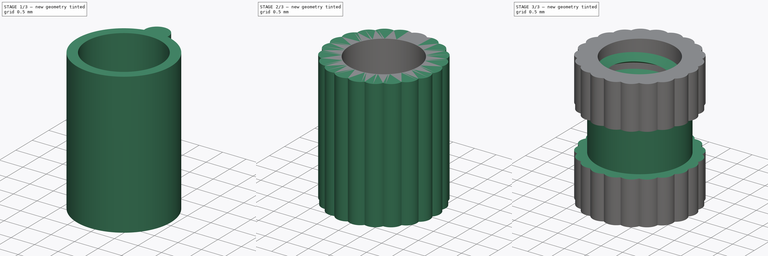
[diagram: build sequence overview — one tinted view per stage of 3, left to right]
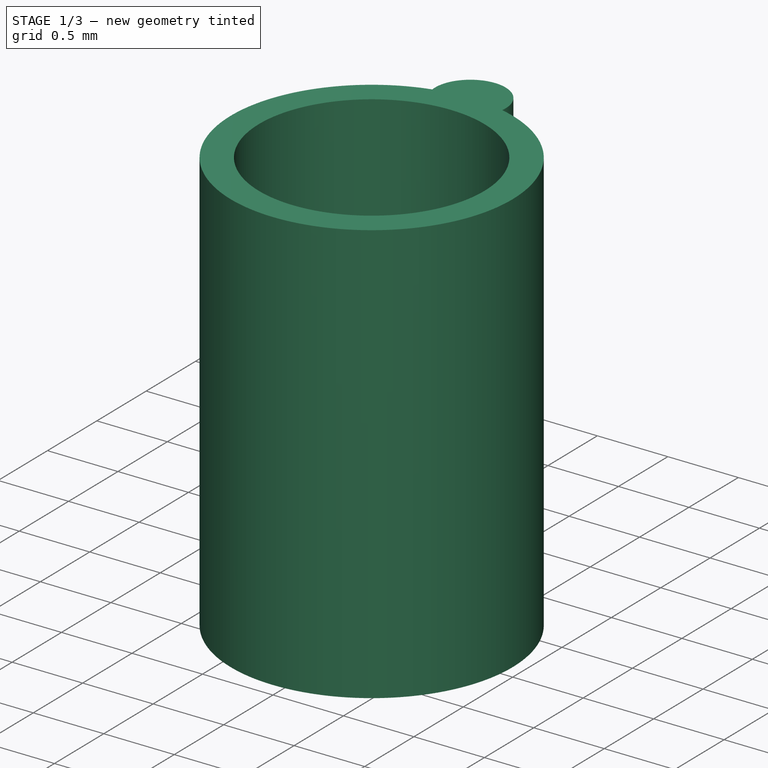
[diagram: stage 1 of 3 — iso view after this stage's code; geometry added in this stage tinted green]
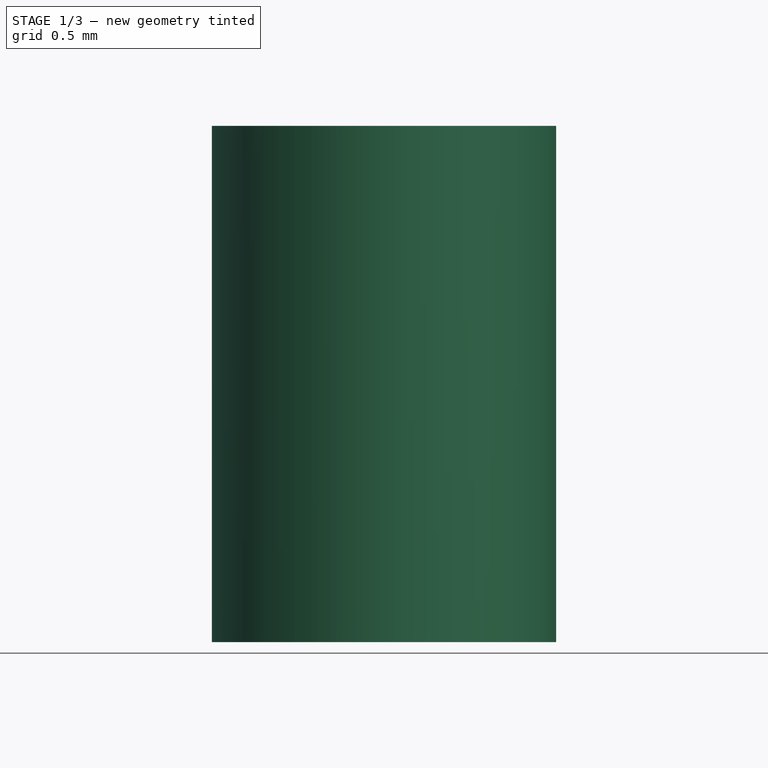
[diagram: stage 1 of 3 — front view after this stage's code; geometry added in this stage tinted green]
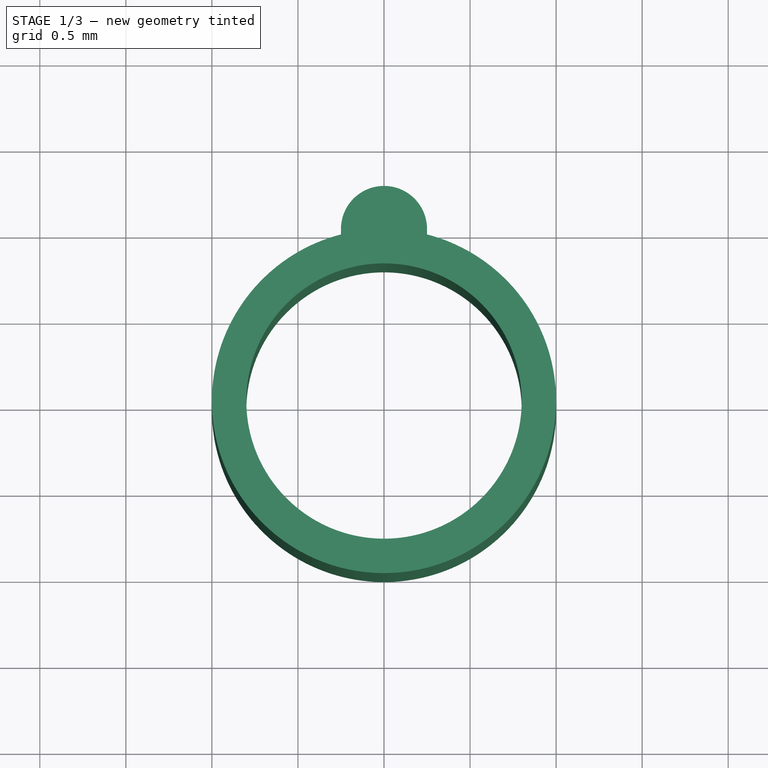
[diagram: stage 1 of 3 — top view after this stage's code; geometry added in this stage tinted green]
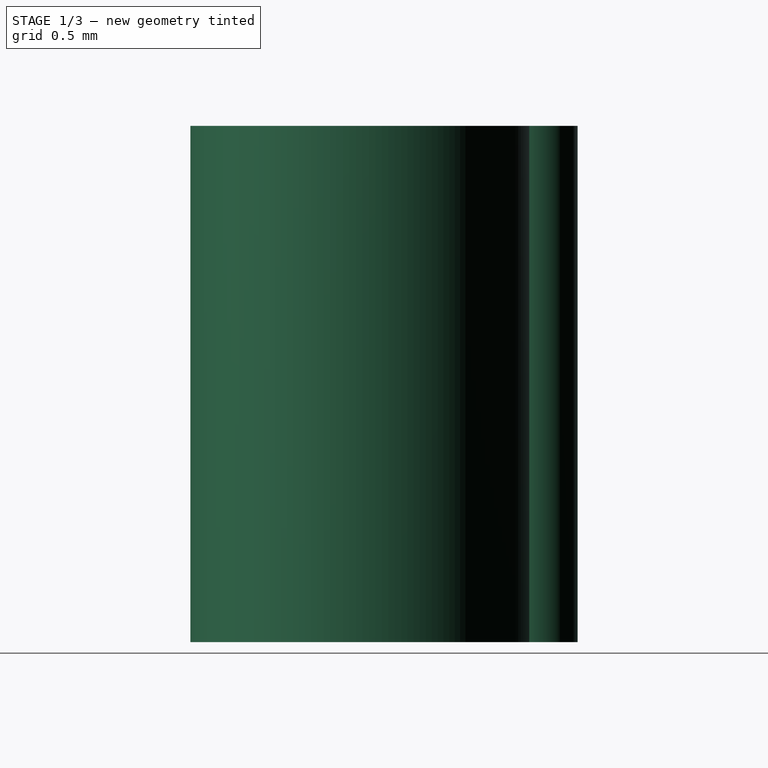
[diagram: stage 1 of 3 — right view after this stage's code; geometry added in this stage tinted green]
FCSTD DOCUMENT  (FreeCAD 1.0R39319 (Git))
Label: INSERT-M1.6x2.5x3
License: All rights reserved
LicenseURL: https://en.wikipedia.org/wiki/All_rights_reserved
objects: Sketcher::SketchObject×4, PartDesign::Pad×2, PartDesign::Plane×2, PartDesign::PolarPattern×1, PartDesign::Groove×1, PartDesign::AdditiveHelix×1, PartDesign::Line×1, PartDesign::Body×1
note: 26 computed .brp shape members not serialized (recipe doc carries the construction recipe); baked Part::Feature solids carry a one-line shape summary decoded from their .brp

FEATURE [Sketcher::SketchObject] Sketch
  ArcFitTolerance = 0
  AttachmentSupport = -> [XY_Plane]
  FullyConstrained = true
  MakeInternals = false
  MapMode = 5
  sketch-geometry (2):
    g0: Circle CenterX=0 CenterY=0 CenterZ=0 NormalX=0 NormalY=0 NormalZ=1 AngleXU=0 Radius=0.8
    g1: Circle CenterX=0 CenterY=0 CenterZ=0 NormalX=0 NormalY=0 NormalZ=1 AngleXU=0 Radius=1
  constraints (4):
    c: Coincident(g0,g-1)
    c: Coincident(g1,g0)
    c: Diameter(g0) = 1.6
    c: Diameter(g1) = 2
FEATURE [PartDesign::Pad] Pad
  Direction = (0,0,1)
  Length = 3
  Length2 = 10
  Midplane = true
  Profile = -> Sketch
  ReferenceAxis = -> Sketch [N_Axis]
  Suppressed = false
  Type = 0
FEATURE [Sketcher::SketchObject] Sketch001
  ArcFitTolerance = 0
  AttachmentSupport = -> [XZ_Plane]
  FullyConstrained = true
  MakeInternals = false
  MapMode = 5
  Placement = pos=(0,0,0) rot=(1,0,0;1.5708rad)
  sketch-geometry (5):
    g0: LineSegment StartX=-0.8 StartY=-1.4 StartZ=0 EndX=-0.6105 EndY=-1.29059 EndZ=0
    g1: LineSegment StartX=-0.6105 StartY=-1.29059 StartZ=0 EndX=-0.8 EndY=-1.18118 EndZ=0
    g2: LineSegment StartX=-0.8 StartY=-1.4 StartZ=0 EndX=-0.9 EndY=-1.4 EndZ=0
    g3: LineSegment StartX=-0.9 StartY=-1.4 StartZ=0 EndX=-0.9 EndY=-1.18118 EndZ=0
    g4: LineSegment StartX=-0.8 StartY=-1.18118 StartZ=0 EndX=-0.9 EndY=-1.18118 EndZ=0
  constraints (15):
    c: Coincident(g1,g0)
    c: Vertical(g0,g1)
    c: Equal(g1,g0)
    c: Angle(g1,g0) = 1.0472
    c: Coincident(g2,g0)
    c: Horizontal(g2)
    c: Coincident(g3,g2)
    c: Vertical(g3)
    c: Coincident(g4,g1)
    c: Horizontal(g4)
    c: Coincident(g3,g4)
    c: Distance(g4) = 0.1
    c: Distance(g0,g-2) = 0.6105
    c: DistanceX(g1,g-1) = 0.8
    c: DistanceY(g0,g-1) = 1.4
FEATURE [PartDesign::Plane] DatumPlane
  AttachmentOffset = pos=(0,0,1.5) rot=(0,0,1;0rad)
  AttachmentSupport = -> [XY_Plane]
  Length = 60
  MapMode = 5
  Placement = pos=(0,0,1.5) rot=(0,0,1;0rad)
  ResizeMode = 0
  Width = 60
FEATURE [Sketcher::SketchObject] Sketch002
  ArcFitTolerance = 0
  AttachmentSupport = -> [DatumPlane]
  FullyConstrained = true
  MakeInternals = false
  MapMode = 5
  Placement = pos=(0,0,1.5) rot=(0,0,1;0rad)
  sketch-geometry (2):
    g0: ArcOfCircle CenterX=0 CenterY=0 CenterZ=0 NormalX=0 NormalY=0 NormalZ=1 AngleXU=0 Radius=0.85 StartAngle=1.35344 EndAngle=1.78815
    g1: ArcOfCircle CenterX=0 CenterY=1 CenterZ=0 NormalX=0 NormalY=0 NormalZ=1 AngleXU=0 Radius=0.25 StartAngle=5.53542 EndAngle=10.1725
  constraints (7):
    c: Diameter(g0) = 1.7
    c: PointOnObject(g1,g-2)
    c: Diameter(g1) = 0.5
    c: Coincident(g0,g1)
    c: Coincident(g0,g1)
    c: DistanceY(g0,g1) = 1
    c: Coincident(g0,g-1)
FEATURE [PartDesign::Pad] Pad001
  BaseFeature = -> Pad
  Direction = (0,0,1)
  Length = 3
  Length2 = 10
  Profile = -> Sketch002
  ReferenceAxis = -> Sketch002 [N_Axis]
  Refine = true
  Reversed = true
  Suppressed = false
  Type = 0
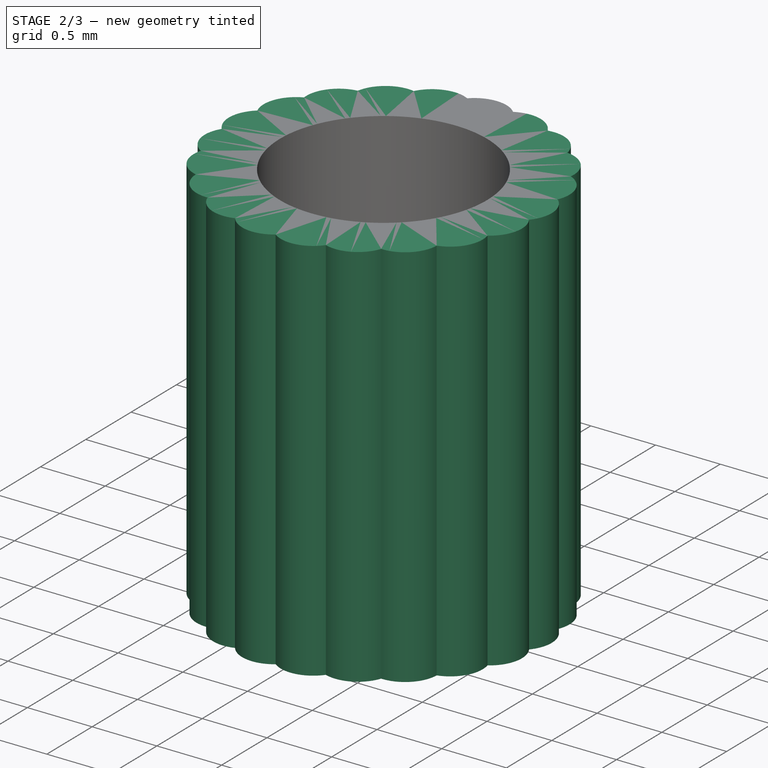
[diagram: stage 2 of 3 — iso view after this stage's code; geometry added in this stage tinted green]
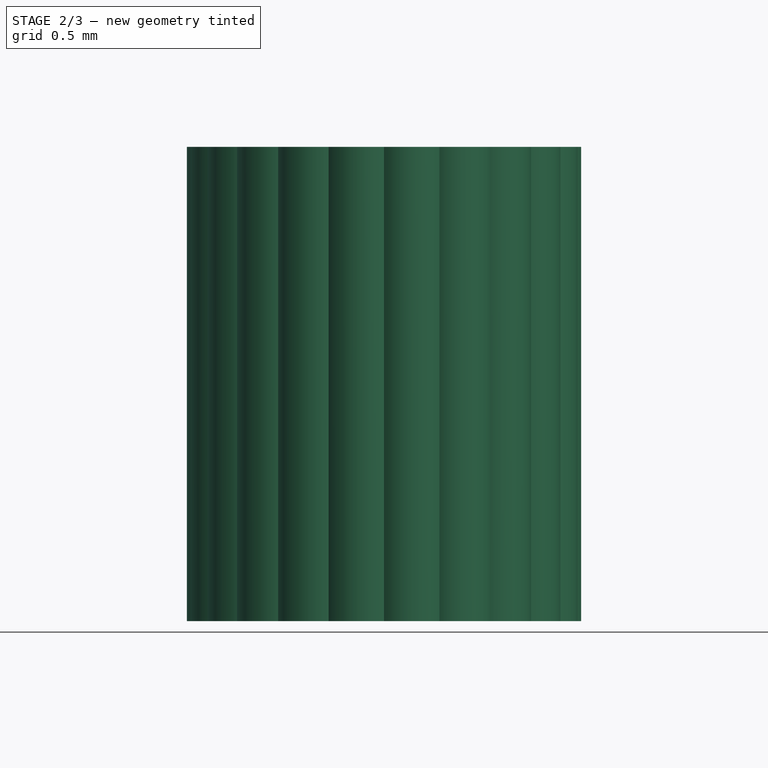
[diagram: stage 2 of 3 — front view after this stage's code; geometry added in this stage tinted green]
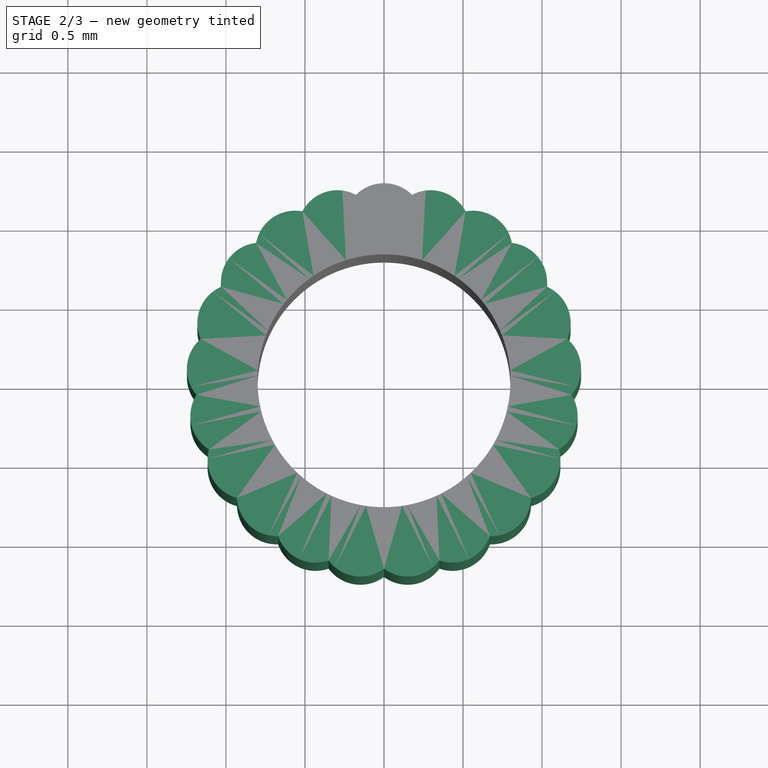
[diagram: stage 2 of 3 — top view after this stage's code; geometry added in this stage tinted green]
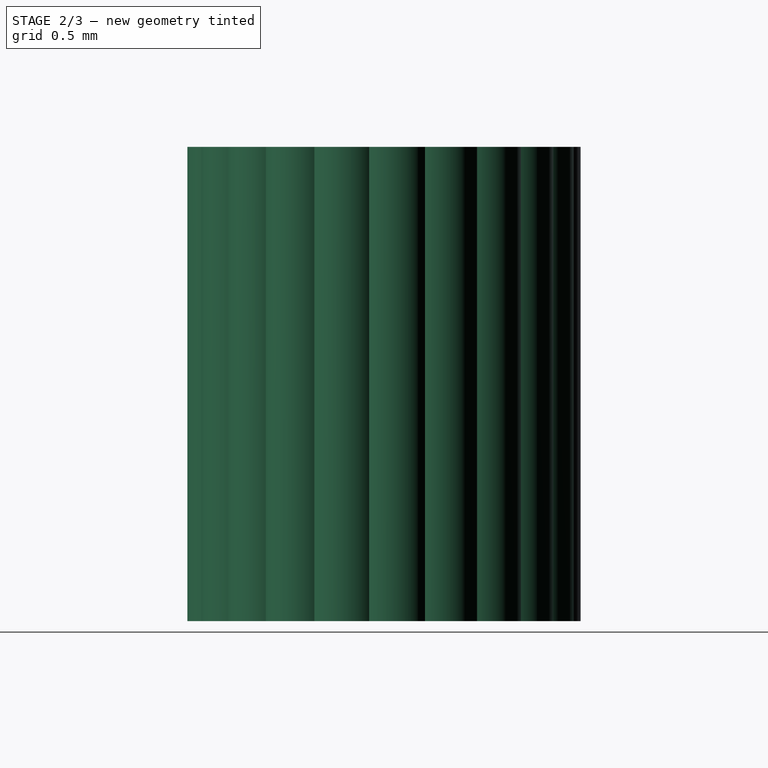
[diagram: stage 2 of 3 — right view after this stage's code; geometry added in this stage tinted green]
FEATURE [PartDesign::PolarPattern] PolarPattern
  Angle = 360
  Axis = -> Sketch002 [N_Axis]
  BaseFeature = -> Pad001
  Mode = 0
  Occurrences = 21
  Offset = 120
  Originals = -> [Pad001]
  Refine = true
  Suppressed = false
  TransformMode = 0
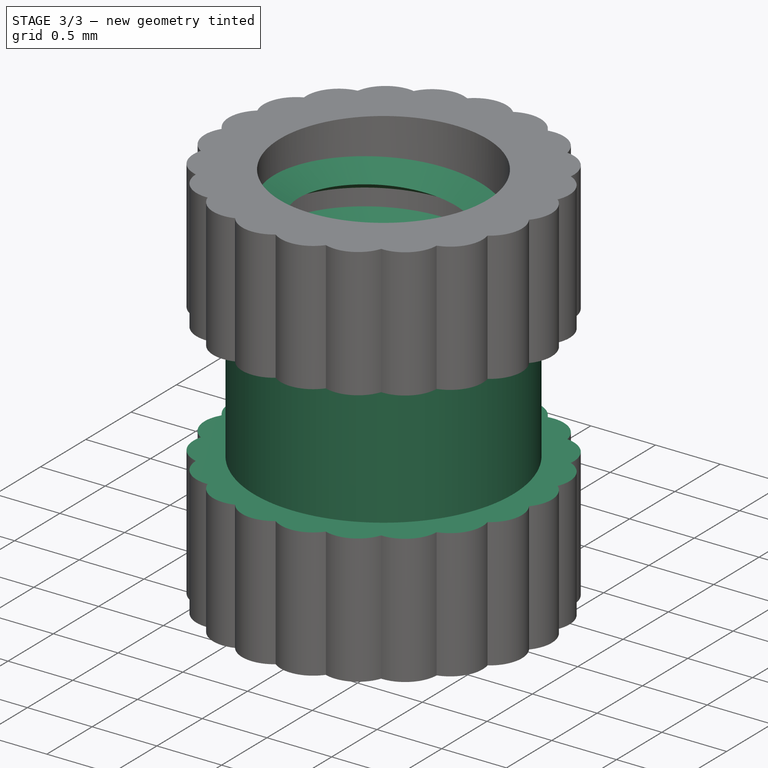
[diagram: stage 3 of 3 — iso view after this stage's code; geometry added in this stage tinted green]
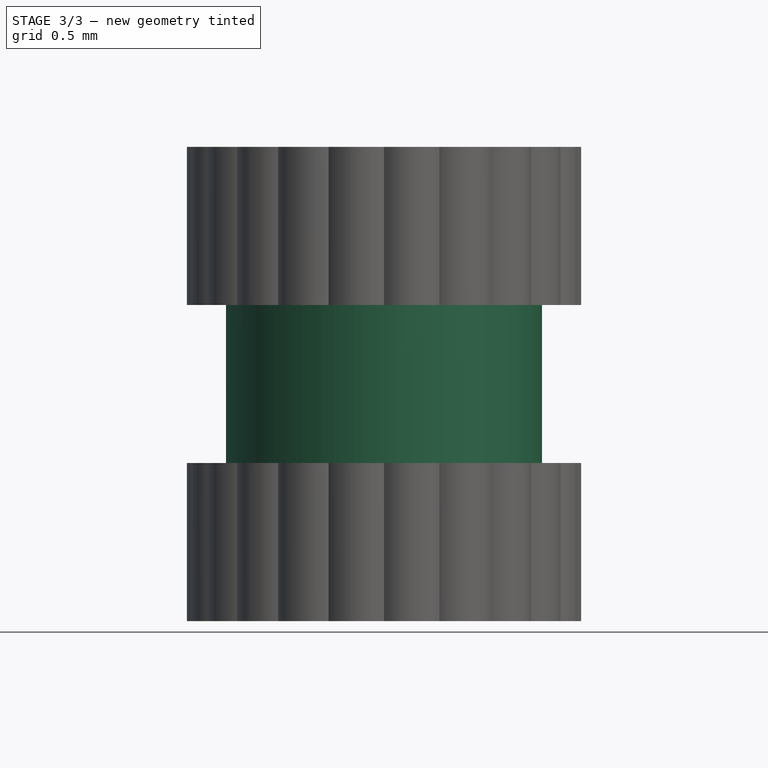
[diagram: stage 3 of 3 — front view after this stage's code; geometry added in this stage tinted green]
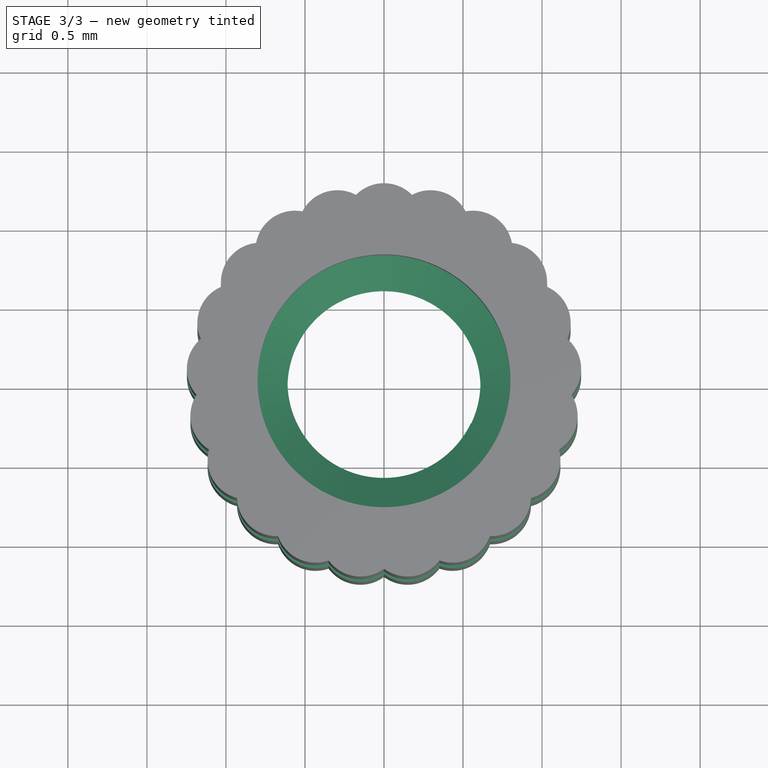
[diagram: stage 3 of 3 — top view after this stage's code; geometry added in this stage tinted green]
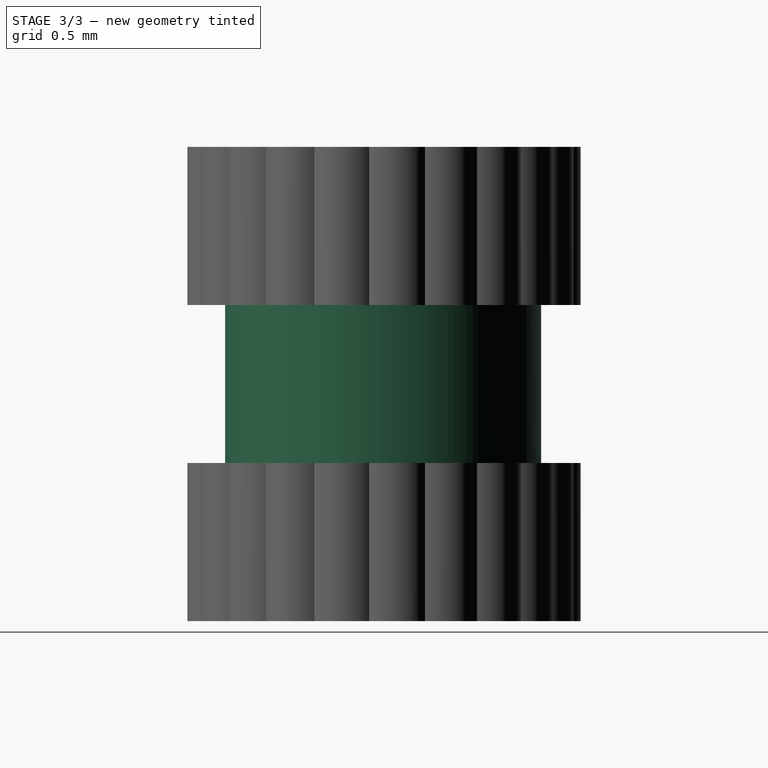
[diagram: stage 3 of 3 — right view after this stage's code; geometry added in this stage tinted green]
FEATURE [Sketcher::SketchObject] Sketch003
  ArcFitTolerance = 0
  AttachmentSupport = -> [XZ_Plane]
  FullyConstrained = true
  MakeInternals = false
  MapMode = 5
  Placement = pos=(0,0,0) rot=(1,0,0;1.5708rad)
  sketch-geometry (5):
    g0: LineSegment StartX=-1 StartY=0.5 StartZ=0 EndX=-1 EndY=-0.5 EndZ=0
    g1: LineSegment [constr] StartX=0 StartY=0 StartZ=0 EndX=-1 EndY=0 EndZ=0
    g2: LineSegment StartX=-1 StartY=0.5 StartZ=0 EndX=-1.6 EndY=0.5 EndZ=0
    g3: LineSegment StartX=-1.6 StartY=0.5 StartZ=0 EndX=-1.6 EndY=-0.5 EndZ=0
    g4: LineSegment StartX=-1 StartY=-0.5 StartZ=0 EndX=-1.6 EndY=-0.5 EndZ=0
  constraints (14):
    c: Coincident(g1,g-1)
    c: Horizontal(g1)
    c: Symmetric(g0,g0,g1)
    c: DistanceY(g0,g0) = 1
    c: Coincident(g2,g0)
    c: Horizontal(g2)
    c: Coincident(g3,g2)
    c: Vertical(g3)
    c: Coincident(g4,g0)
    c: Horizontal(g4)
    c: Coincident(g3,g4)
    c: DistanceX(g2,g2) = 0.6
    c: Vertical(g0)
    c: DistanceX(g1,g1) = 1
FEATURE [PartDesign::Groove] Groove
  Angle = 360
  Angle2 = 60
  Axis = (0,2e-16,1)
  Base = (0,0,0)
  BaseFeature = -> PolarPattern
  Profile = -> Sketch003
  ReferenceAxis = -> Sketch003 [V_Axis]
  Reversed = true
  Suppressed = false
  Type = 0
FEATURE [PartDesign::AdditiveHelix] AdditiveHelix
  Angle = 0
  Axis = (0,2e-16,1)
  Base = (0,0,0)
  BaseFeature = -> Groove
  Growth = 0
  HasBeenEdited = true
  Height = 2.6
  LeftHanded = false
  Mode = 0
  Outside = false
  Pitch = 0.35
  Profile = -> Sketch001
  ReferenceAxis = -> Sketch001 [V_Axis]
  Refine = true
  Suppressed = false
  Tolerance = 0.1
  Turns = 7.42857
FEATURE [PartDesign::Plane] Plane_1
  AttachmentSupport = -> [AdditiveHelix]
  Length = 100
  MapMode = 5
  Placement = pos=(0,0,1.5) rot=(0,0,1;0rad)
  ResizeMode = 1
  Width = 100
FEATURE [PartDesign::Line] CircleAxis_1
  AttacherType = Attacher::AttachEngineLine
  AttachmentSupport = -> [AdditiveHelix]
  Length = 4.50902
  MapMode = 19
  Placement = pos=(-1e-16,0,1.5) rot=(0,0,1;0rad)
  ResizeMode = 1
FEATURE [PartDesign::Body] Body  label="INSERT-M1.6x2.5x3"
  AllowCompound = false
  Group = -> [Sketch,Pad,Sketch001,DatumPlane,Sketch002,Pad001,PolarPattern,Sketch003,Groove,AdditiveHelix,Plane_1,CircleAxis_1]
  Origin = -> Origin
  Tip = -> AdditiveHelix
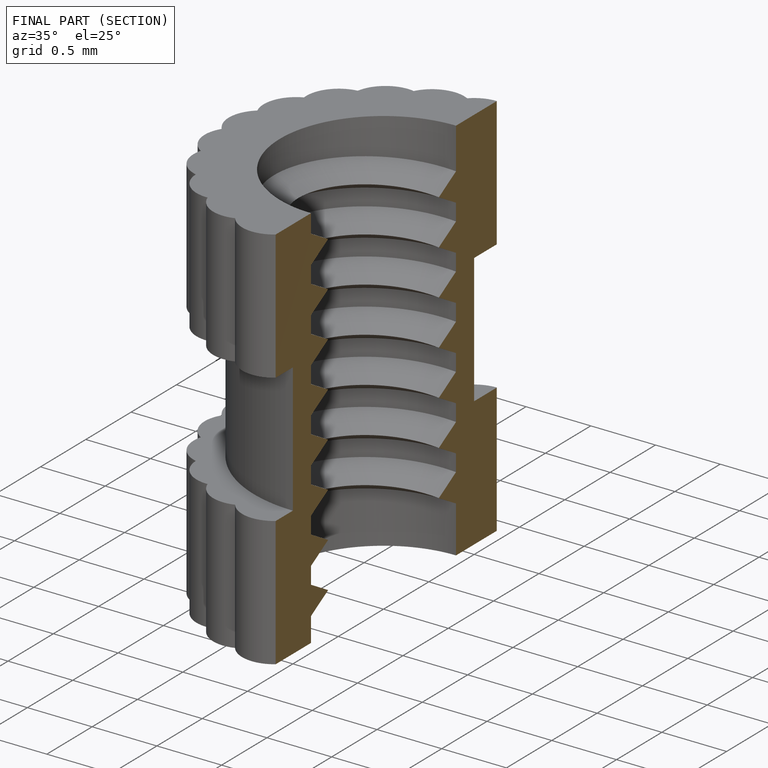
[diagram: finished part — half-section view (interior)]
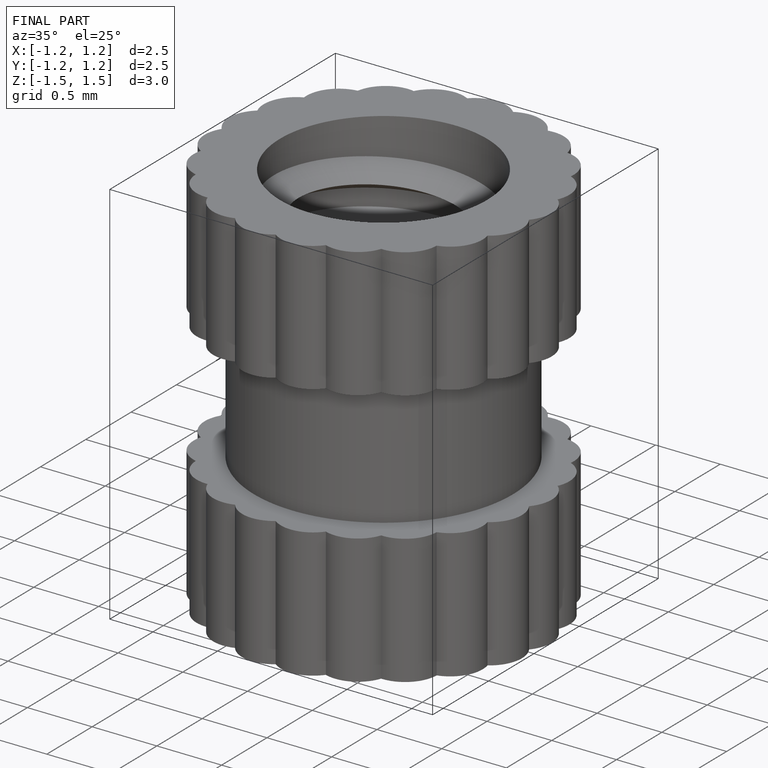
[diagram: finished part — iso view with bounding-box wireframe]
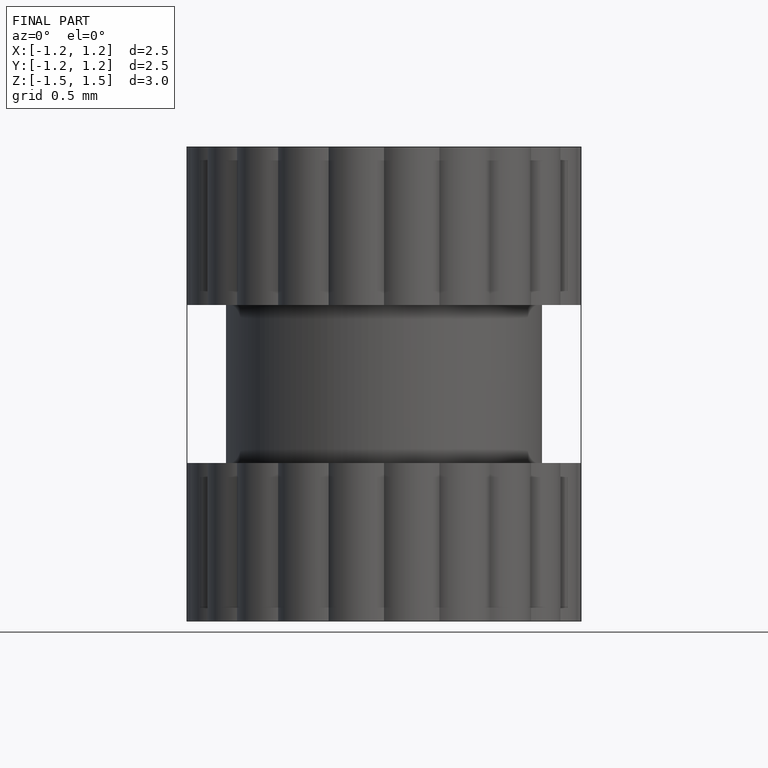
[diagram: finished part — front view with bounding-box wireframe]
